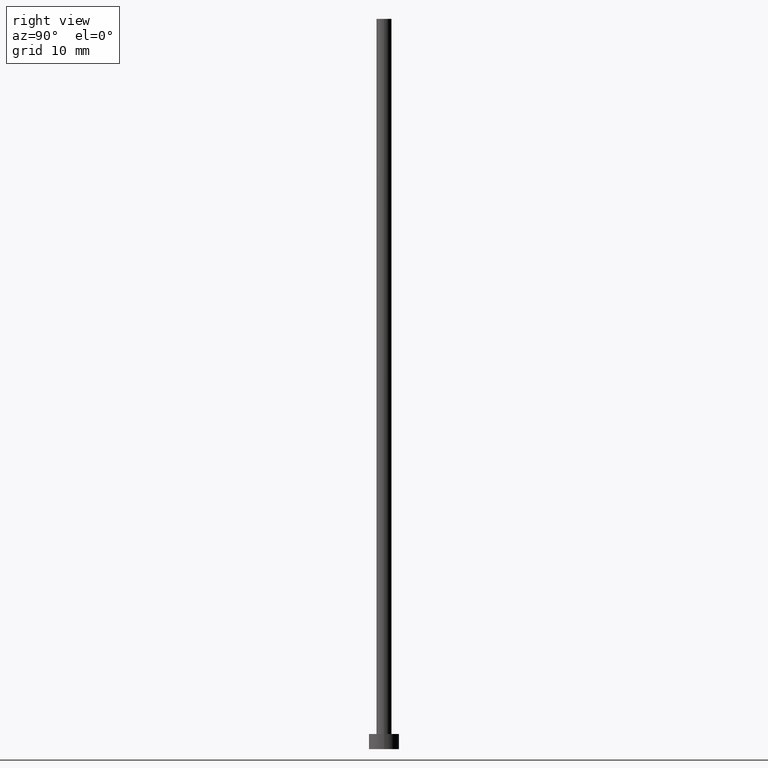
[diagram: clean part render]
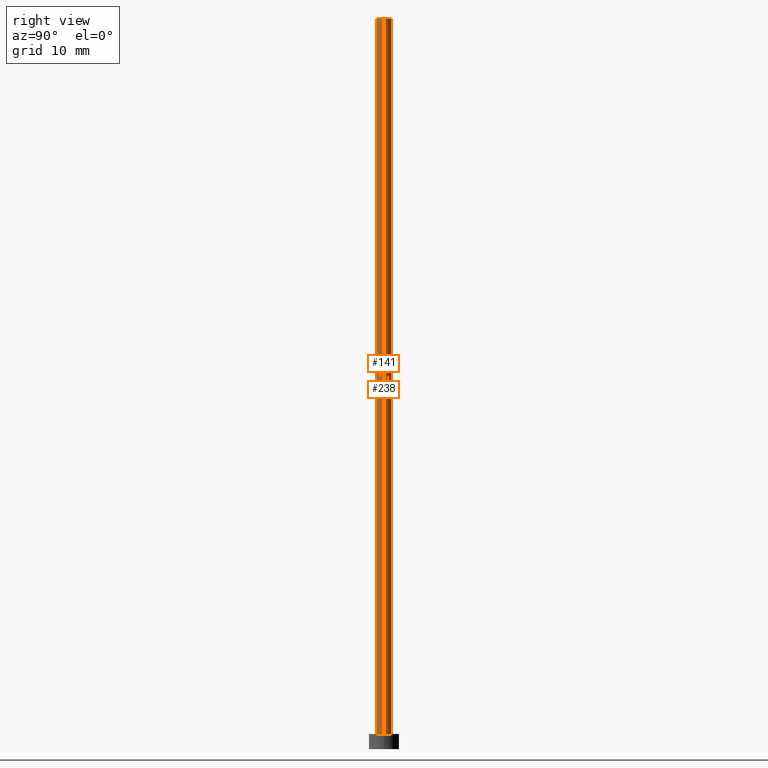
[diagram: same view with one multi-face feature highlighted, each face labeled with its STEP entity id]
A machine part, right view. The highlighted faces form ONE feature: a constant-radius fillet chain: 2 tangent blend faces with common blend radius 1 mm. The faces share edges in the B-rep.
Their STEP definitions:
[1] entity #238 (Cylinder):
#5 = CYLINDRICAL_SURFACE ( 'NONE', #24, 1.000000000000000000 ) ;
#12 = CARTESIAN_POINT ( 'NONE',  ( -1.000000000000000000, 0.000000000000000000, 96.50000000000000000 ) ) ;
#13 = VERTEX_POINT ( 'NONE', #12 ) ;
#15 = ORIENTED_EDGE ( 'NONE', *, *, #52, .T. ) ;
#16 = DIRECTION ( 'NONE',  ( -0.000000000000000000, -0.000000000000000000, -1.000000000000000000 ) ) ;
#17 = DIRECTION ( 'NONE',  ( 1.000000000000000000, 0.000000000000000000, 0.000000000000000000 ) ) ;
#19 = CARTESIAN_POINT ( 'NONE',  ( 1.000000000000000000, 1.224646799147353207E-16, 2.000000000000000000 ) ) ;
#21 = EDGE_CURVE ( 'NONE', #230, #40, #47, .T. ) ;
#22 = DIRECTION ( 'NONE',  ( 1.000000000000000000, 0.000000000000000000, 0.000000000000000000 ) ) ;
#24 = AXIS2_PLACEMENT_3D ( 'NONE', #246, #66, #152 ) ;
#38 = VECTOR ( 'NONE', #16, 1000.000000000000000 ) ;
#39 = CIRCLE ( 'NONE', #82, 1.000000000000000000 ) ;
#40 = VERTEX_POINT ( 'NONE', #19 ) ;
#47 = LINE ( 'NONE', #123, #38 ) ;
#52 = EDGE_CURVE ( 'NONE', #40, #54, #165, .T. ) ;
#54 = VERTEX_POINT ( 'NONE', #80 ) ;
#66 = DIRECTION ( 'NONE',  ( -0.000000000000000000, -0.000000000000000000, -1.000000000000000000 ) ) ;
#76 = DIRECTION ( 'NONE',  ( 0.000000000000000000, 0.000000000000000000, 1.000000000000000000 ) ) ;
#80 = CARTESIAN_POINT ( 'NONE',  ( -1.000000000000000000, 0.000000000000000000, 2.000000000000000000 ) ) ;
#82 = AXIS2_PLACEMENT_3D ( 'NONE', #221, #76, #17 ) ;
#90 = ORIENTED_EDGE ( 'NONE', *, *, #146, .F. ) ;
#116 = ORIENTED_EDGE ( 'NONE', *, *, #243, .F. ) ;
#123 = CARTESIAN_POINT ( 'NONE',  ( 1.000000000000000000, 1.224646799147353207E-16, 96.50000000000000000 ) ) ;
#132 = DIRECTION ( 'NONE',  ( -0.000000000000000000, -0.000000000000000000, -1.000000000000000000 ) ) ;
#145 = CARTESIAN_POINT ( 'NONE',  ( -1.000000000000000000, 0.000000000000000000, 96.50000000000000000 ) ) ;
#146 = EDGE_CURVE ( 'NONE', #13, #54, #205, .T. ) ;
#152 = DIRECTION ( 'NONE',  ( -1.000000000000000000, 0.000000000000000000, 0.000000000000000000 ) ) ;
#165 = CIRCLE ( 'NONE', #207, 1.000000000000000000 ) ;
#174 = FACE_OUTER_BOUND ( 'NONE', #251, .T. ) ;
#203 = VECTOR ( 'NONE', #132, 1000.000000000000000 ) ;
#205 = LINE ( 'NONE', #145, #203 ) ;
#206 = DIRECTION ( 'NONE',  ( 0.000000000000000000, 0.000000000000000000, 1.000000000000000000 ) ) ;
#207 = AXIS2_PLACEMENT_3D ( 'NONE', #245, #206, #22 ) ;
#213 = ORIENTED_EDGE ( 'NONE', *, *, #21, .T. ) ;
#221 = CARTESIAN_POINT ( 'NONE',  ( 0.000000000000000000, 0.000000000000000000, 96.50000000000000000 ) ) ;
#230 = VERTEX_POINT ( 'NONE', #232 ) ;
#232 = CARTESIAN_POINT ( 'NONE',  ( 1.000000000000000000, 1.224646799147353207E-16, 96.50000000000000000 ) ) ;
#238 = ADVANCED_FACE ( 'NONE', ( #174 ), #5, .T. ) ;
#243 = EDGE_CURVE ( 'NONE', #230, #13, #39, .T. ) ;
#245 = CARTESIAN_POINT ( 'NONE',  ( 0.000000000000000000, 0.000000000000000000, 2.000000000000000000 ) ) ;
#246 = CARTESIAN_POINT ( 'NONE',  ( 0.000000000000000000, 0.000000000000000000, 96.50000000000000000 ) ) ;
#251 = EDGE_LOOP ( 'NONE', ( #116, #213, #15, #90 ) ) ;
[2] entity #141 (Cylinder):
#10 = ORIENTED_EDGE ( 'NONE', *, *, #21, .F. ) ;
#12 = CARTESIAN_POINT ( 'NONE',  ( -1.000000000000000000, 0.000000000000000000, 96.50000000000000000 ) ) ;
#13 = VERTEX_POINT ( 'NONE', #12 ) ;
#16 = DIRECTION ( 'NONE',  ( -0.000000000000000000, -0.000000000000000000, -1.000000000000000000 ) ) ;
#19 = CARTESIAN_POINT ( 'NONE',  ( 1.000000000000000000, 1.224646799147353207E-16, 2.000000000000000000 ) ) ;
#21 = EDGE_CURVE ( 'NONE', #230, #40, #47, .T. ) ;
#25 = CARTESIAN_POINT ( 'NONE',  ( 0.000000000000000000, 0.000000000000000000, 96.50000000000000000 ) ) ;
#26 = DIRECTION ( 'NONE',  ( -0.000000000000000000, -0.000000000000000000, -1.000000000000000000 ) ) ;
#38 = VECTOR ( 'NONE', #16, 1000.000000000000000 ) ;
#40 = VERTEX_POINT ( 'NONE', #19 ) ;
#42 = DIRECTION ( 'NONE',  ( 0.000000000000000000, 0.000000000000000000, 1.000000000000000000 ) ) ;
#47 = LINE ( 'NONE', #123, #38 ) ;
#49 = ORIENTED_EDGE ( 'NONE', *, *, #97, .T. ) ;
#54 = VERTEX_POINT ( 'NONE', #80 ) ;
#74 = EDGE_CURVE ( 'NONE', #13, #230, #199, .T. ) ;
#80 = CARTESIAN_POINT ( 'NONE',  ( -1.000000000000000000, 0.000000000000000000, 2.000000000000000000 ) ) ;
#97 = EDGE_CURVE ( 'NONE', #54, #40, #220, .T. ) ;
#106 = DIRECTION ( 'NONE',  ( -1.000000000000000000, 0.000000000000000000, 0.000000000000000000 ) ) ;
#123 = CARTESIAN_POINT ( 'NONE',  ( 1.000000000000000000, 1.224646799147353207E-16, 96.50000000000000000 ) ) ;
#131 = FACE_OUTER_BOUND ( 'NONE', #138, .T. ) ;
#132 = DIRECTION ( 'NONE',  ( -0.000000000000000000, -0.000000000000000000, -1.000000000000000000 ) ) ;
#138 = EDGE_LOOP ( 'NONE', ( #10, #197, #176, #49 ) ) ;
#141 = ADVANCED_FACE ( 'NONE', ( #131 ), #209, .T. ) ;
#145 = CARTESIAN_POINT ( 'NONE',  ( -1.000000000000000000, 0.000000000000000000, 96.50000000000000000 ) ) ;
#146 = EDGE_CURVE ( 'NONE', #13, #54, #205, .T. ) ;
#168 = DIRECTION ( 'NONE',  ( 1.000000000000000000, 0.000000000000000000, 0.000000000000000000 ) ) ;
#169 = DIRECTION ( 'NONE',  ( 0.000000000000000000, 0.000000000000000000, 1.000000000000000000 ) ) ;
#176 = ORIENTED_EDGE ( 'NONE', *, *, #146, .T. ) ;
#183 = AXIS2_PLACEMENT_3D ( 'NONE', #25, #169, #168 ) ;
#188 = CARTESIAN_POINT ( 'NONE',  ( 0.000000000000000000, 0.000000000000000000, 96.50000000000000000 ) ) ;
#195 = AXIS2_PLACEMENT_3D ( 'NONE', #223, #42, #240 ) ;
#197 = ORIENTED_EDGE ( 'NONE', *, *, #74, .F. ) ;
#199 = CIRCLE ( 'NONE', #183, 1.000000000000000000 ) ;
#203 = VECTOR ( 'NONE', #132, 1000.000000000000000 ) ;
#205 = LINE ( 'NONE', #145, #203 ) ;
#209 = CYLINDRICAL_SURFACE ( 'NONE', #212, 1.000000000000000000 ) ;
#212 = AXIS2_PLACEMENT_3D ( 'NONE', #188, #26, #106 ) ;
#220 = CIRCLE ( 'NONE', #195, 1.000000000000000000 ) ;
#223 = CARTESIAN_POINT ( 'NONE',  ( 0.000000000000000000, 0.000000000000000000, 2.000000000000000000 ) ) ;
#230 = VERTEX_POINT ( 'NONE', #232 ) ;
#232 = CARTESIAN_POINT ( 'NONE',  ( 1.000000000000000000, 1.224646799147353207E-16, 96.50000000000000000 ) ) ;
#240 = DIRECTION ( 'NONE',  ( 1.000000000000000000, 0.000000000000000000, 0.000000000000000000 ) ) ;